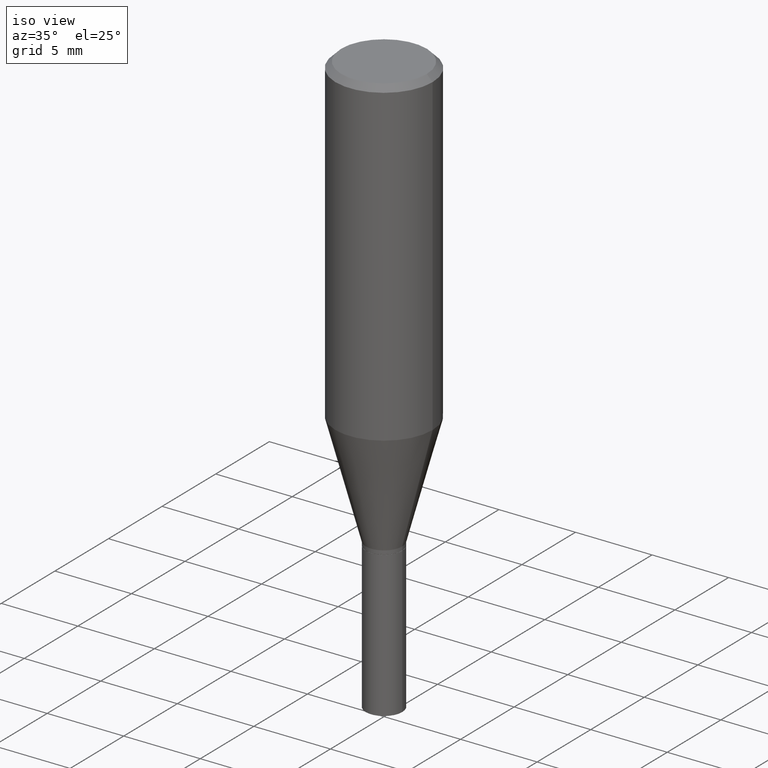
[diagram: clean part render]
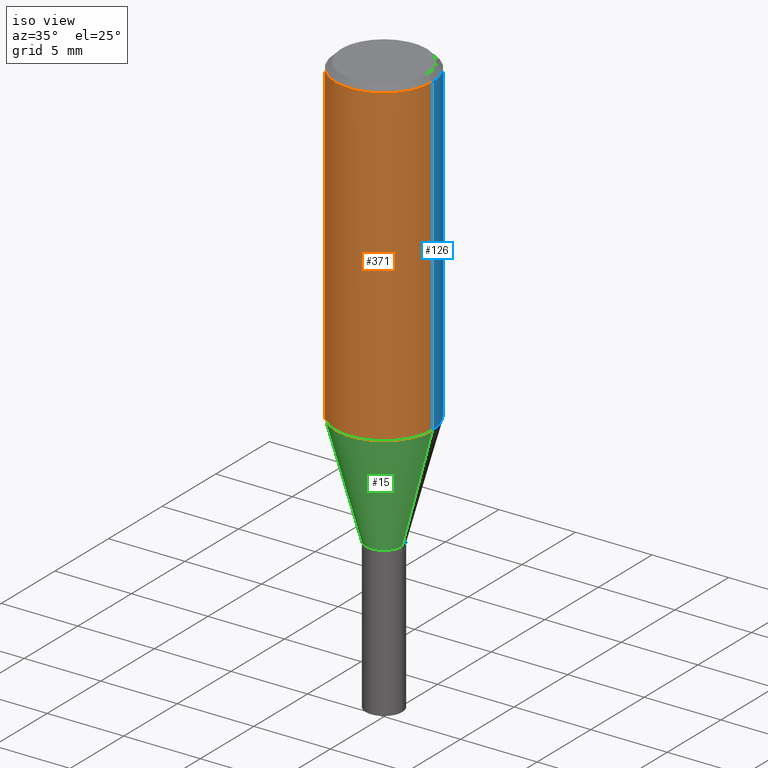
[diagram: same view with three faces highlighted in distinct colors, each labeled with its STEP entity id]
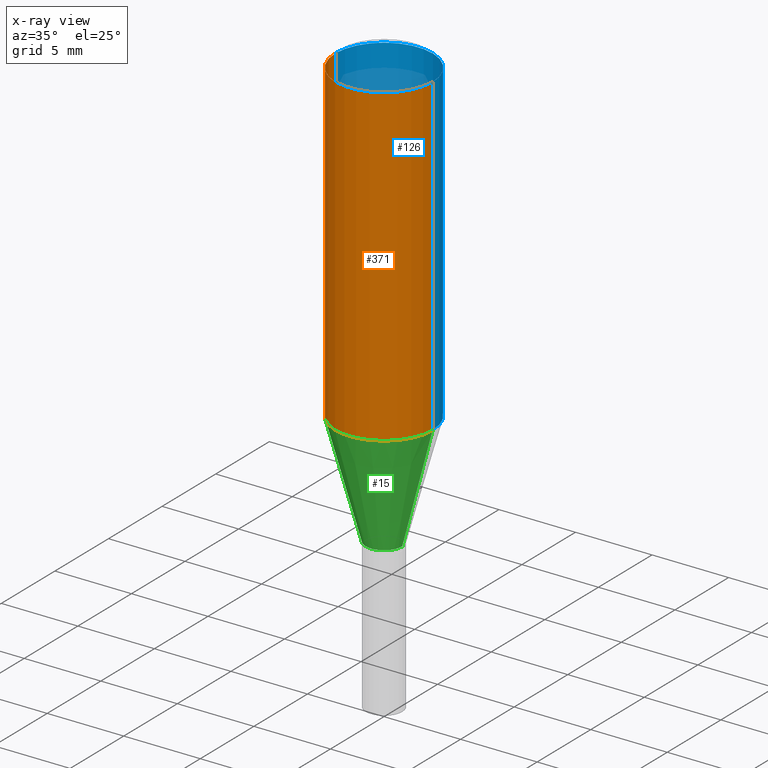
[diagram: x-ray of the same camera — body ghosted, the three highlighted faces saturated]
A machine part, iso view with three faces highlighted in distinct colors.
The next image is the same camera in x-ray (body ghosted, the three faces saturated) — at least one of them is partly hidden behind the body in this view.
Their STEP definitions:

[orange] entity #371 — the highlighted cylindrical surface (partial cylindrical patch) has radius 3.175 mm, axis along (-0, 0, 1).
#4 = CARTESIAN_POINT ( 'NONE',  ( -0.1249999999999999861, -1.987150146016147440E-15, -0.8235268319288721051 ) ) ;
#6 = EDGE_CURVE ( 'NONE', #79, #215, #272, .T. ) ;
#9 = DIRECTION ( 'NONE',  ( 1.000000000000000000, -6.982962677686266711E-15, 0.000000000000000000 ) ) ;
#18 = CARTESIAN_POINT ( 'NONE',  ( 0.1249999999999999861, -3.748198900427056011E-15, -0.8235268319288721051 ) ) ;
#28 = FACE_OUTER_BOUND ( 'NONE', #267, .T. ) ;
#48 = ORIENTED_EDGE ( 'NONE', *, *, #136, .F. ) ;
#61 = CARTESIAN_POINT ( 'NONE',  ( -0.1250000000000000000, 8.881784197001252323E-16, -6.148668862818632227E-30 ) ) ;
#65 = CARTESIAN_POINT ( 'NONE',  ( 0.000000000000000000, 0.000000000000000000, 0.000000000000000000 ) ) ;
#79 = VERTEX_POINT ( 'NONE', #4 ) ;
#87 = LINE ( 'NONE', #295, #311 ) ;
#95 = VERTEX_POINT ( 'NONE', #429 ) ;
#96 = DIRECTION ( 'NONE',  ( -2.445468806185136877E-29, 3.491481338843145188E-15, 1.000000000000000000 ) ) ;
#108 = VERTEX_POINT ( 'NONE', #220 ) ;
#136 = EDGE_CURVE ( 'NONE', #79, #95, #411, .T. ) ;
#141 = DIRECTION ( 'NONE',  ( -2.445468806185136597E-29, 3.491481338843145583E-15, 1.000000000000000000 ) ) ;
#195 = AXIS2_PLACEMENT_3D ( 'NONE', #65, #276, #202 ) ;
#202 = DIRECTION ( 'NONE',  ( 1.000000000000000000, -6.982962677686266711E-15, 4.876176775795935793E-29 ) ) ;
#215 = VERTEX_POINT ( 'NONE', #18 ) ;
#220 = CARTESIAN_POINT ( 'NONE',  ( 0.1250000000000000000, -9.252425547934304180E-16, -0.01499999999999999944 ) ) ;
#224 = DIRECTION ( 'NONE',  ( -2.445468806185136597E-29, 3.491481338843145583E-15, 1.000000000000000000 ) ) ;
#229 = AXIS2_PLACEMENT_3D ( 'NONE', #247, #141, #277 ) ;
#243 = ORIENTED_EDGE ( 'NONE', *, *, #6, .T. ) ;
#244 = EDGE_CURVE ( 'NONE', #215, #108, #87, .T. ) ;
#247 = CARTESIAN_POINT ( 'NONE',  ( 2.013909178538526665E-29, -2.875328565716272672E-15, -0.8235268319288721051 ) ) ;
#254 = CIRCLE ( 'NONE', #329, 0.1250000000000000000 ) ;
#260 = EDGE_CURVE ( 'NONE', #95, #108, #254, .T. ) ;
#267 = EDGE_LOOP ( 'NONE', ( #48, #243, #308, #344 ) ) ;
#272 = CIRCLE ( 'NONE', #229, 0.1250000000000000000 ) ;
#276 = DIRECTION ( 'NONE',  ( -2.445468806185136597E-29, 3.491481338843145583E-15, 1.000000000000000000 ) ) ;
#277 = DIRECTION ( 'NONE',  ( 1.000000000000000000, -6.982962677686266711E-15, 0.000000000000000000 ) ) ;
#295 = CARTESIAN_POINT ( 'NONE',  ( 0.1250000000000000000, -8.728703347107833388E-16, 6.095220969744919741E-30 ) ) ;
#308 = ORIENTED_EDGE ( 'NONE', *, *, #244, .T. ) ;
#311 = VECTOR ( 'NONE', #441, 39.37007874015748143 ) ;
#320 = CARTESIAN_POINT ( 'NONE',  ( 3.668203209277705088E-31, -5.237222008264718399E-17, -0.01499999999999999944 ) ) ;
#329 = AXIS2_PLACEMENT_3D ( 'NONE', #320, #224, #9 ) ;
#344 = ORIENTED_EDGE ( 'NONE', *, *, #260, .F. ) ;
#353 = VECTOR ( 'NONE', #96, 39.37007874015748143 ) ;
#371 = ADVANCED_FACE ( 'NONE', ( #28 ), #379, .T. ) ;
#379 = CYLINDRICAL_SURFACE ( 'NONE', #195, 0.1250000000000000000 ) ;
#411 = LINE ( 'NONE', #61, #353 ) ;
#429 = CARTESIAN_POINT ( 'NONE',  ( -0.1250000000000000000, -5.756719731993345446E-16, -0.01499999999999999944 ) ) ;
#441 = DIRECTION ( 'NONE',  ( -2.445468806185136877E-29, 3.491481338843145188E-15, 1.000000000000000000 ) ) ;

[blue] entity #126 — the highlighted cylindrical surface (partial cylindrical patch) has radius 3.175 mm, axis along (-0, 0, 1).
#2 = CYLINDRICAL_SURFACE ( 'NONE', #359, 0.1250000000000000000 ) ;
#4 = CARTESIAN_POINT ( 'NONE',  ( -0.1249999999999999861, -1.987150146016147440E-15, -0.8235268319288721051 ) ) ;
#5 = CIRCLE ( 'NONE', #179, 0.1250000000000000000 ) ;
#11 = DIRECTION ( 'NONE',  ( 1.000000000000000000, -6.982962677686266711E-15, 0.000000000000000000 ) ) ;
#17 = CARTESIAN_POINT ( 'NONE',  ( 0.000000000000000000, 0.000000000000000000, 0.000000000000000000 ) ) ;
#18 = CARTESIAN_POINT ( 'NONE',  ( 0.1249999999999999861, -3.748198900427056011E-15, -0.8235268319288721051 ) ) ;
#24 = ORIENTED_EDGE ( 'NONE', *, *, #262, .T. ) ;
#52 = DIRECTION ( 'NONE',  ( -2.445468806185136597E-29, 3.491481338843145583E-15, 1.000000000000000000 ) ) ;
#61 = CARTESIAN_POINT ( 'NONE',  ( -0.1250000000000000000, 8.881784197001252323E-16, -6.148668862818632227E-30 ) ) ;
#68 = ORIENTED_EDGE ( 'NONE', *, *, #136, .T. ) ;
#71 = ORIENTED_EDGE ( 'NONE', *, *, #244, .F. ) ;
#79 = VERTEX_POINT ( 'NONE', #4 ) ;
#86 = CARTESIAN_POINT ( 'NONE',  ( 3.668203209277705088E-31, -5.237222008264718399E-17, -0.01499999999999999944 ) ) ;
#87 = LINE ( 'NONE', #295, #311 ) ;
#92 = ORIENTED_EDGE ( 'NONE', *, *, #196, .F. ) ;
#95 = VERTEX_POINT ( 'NONE', #429 ) ;
#96 = DIRECTION ( 'NONE',  ( -2.445468806185136877E-29, 3.491481338843145188E-15, 1.000000000000000000 ) ) ;
#108 = VERTEX_POINT ( 'NONE', #220 ) ;
#125 = CARTESIAN_POINT ( 'NONE',  ( 2.013909178538526665E-29, -2.875328565716272672E-15, -0.8235268319288721051 ) ) ;
#126 = ADVANCED_FACE ( 'NONE', ( #325 ), #2, .T. ) ;
#136 = EDGE_CURVE ( 'NONE', #79, #95, #411, .T. ) ;
#155 = DIRECTION ( 'NONE',  ( -2.445468806185136597E-29, 3.491481338843145583E-15, 1.000000000000000000 ) ) ;
#164 = DIRECTION ( 'NONE',  ( 1.000000000000000000, -6.982962677686266711E-15, 4.876176775795935793E-29 ) ) ;
#179 = AXIS2_PLACEMENT_3D ( 'NONE', #125, #52, #377 ) ;
#196 = EDGE_CURVE ( 'NONE', #108, #95, #203, .T. ) ;
#203 = CIRCLE ( 'NONE', #455, 0.1250000000000000000 ) ;
#215 = VERTEX_POINT ( 'NONE', #18 ) ;
#220 = CARTESIAN_POINT ( 'NONE',  ( 0.1250000000000000000, -9.252425547934304180E-16, -0.01499999999999999944 ) ) ;
#244 = EDGE_CURVE ( 'NONE', #215, #108, #87, .T. ) ;
#262 = EDGE_CURVE ( 'NONE', #215, #79, #5, .T. ) ;
#295 = CARTESIAN_POINT ( 'NONE',  ( 0.1250000000000000000, -8.728703347107833388E-16, 6.095220969744919741E-30 ) ) ;
#311 = VECTOR ( 'NONE', #441, 39.37007874015748143 ) ;
#325 = FACE_OUTER_BOUND ( 'NONE', #332, .T. ) ;
#332 = EDGE_LOOP ( 'NONE', ( #24, #68, #92, #71 ) ) ;
#336 = DIRECTION ( 'NONE',  ( -2.445468806185136597E-29, 3.491481338843145583E-15, 1.000000000000000000 ) ) ;
#353 = VECTOR ( 'NONE', #96, 39.37007874015748143 ) ;
#359 = AXIS2_PLACEMENT_3D ( 'NONE', #17, #155, #164 ) ;
#377 = DIRECTION ( 'NONE',  ( 1.000000000000000000, -6.982962677686266711E-15, 0.000000000000000000 ) ) ;
#411 = LINE ( 'NONE', #61, #353 ) ;
#429 = CARTESIAN_POINT ( 'NONE',  ( -0.1250000000000000000, -5.756719731993345446E-16, -0.01499999999999999944 ) ) ;
#441 = DIRECTION ( 'NONE',  ( -2.445468806185136877E-29, 3.491481338843145188E-15, 1.000000000000000000 ) ) ;
#455 = AXIS2_PLACEMENT_3D ( 'NONE', #86, #336, #11 ) ;

[green] entity #15 — the highlighted conical surface has half-angle 15 deg.
#4 = CARTESIAN_POINT ( 'NONE',  ( -0.1249999999999999861, -1.987150146016147440E-15, -0.8235268319288721051 ) ) ;
#6 = EDGE_CURVE ( 'NONE', #79, #215, #272, .T. ) ;
#14 = VERTEX_POINT ( 'NONE', #205 ) ;
#15 = ADVANCED_FACE ( 'NONE', ( #234 ), #153, .T. ) ;
#18 = CARTESIAN_POINT ( 'NONE',  ( 0.1249999999999999861, -3.748198900427056011E-15, -0.8235268319288721051 ) ) ;
#32 = DIRECTION ( 'NONE',  ( -0.2588190451025215166, 5.211531920934551042E-15, 0.9659258262890679791 ) ) ;
#54 = AXIS2_PLACEMENT_3D ( 'NONE', #152, #341, #259 ) ;
#58 = LINE ( 'NONE', #385, #360 ) ;
#79 = VERTEX_POINT ( 'NONE', #4 ) ;
#100 = CARTESIAN_POINT ( 'NONE',  ( 0.04690000000000005276, -4.220502642393594266E-15, -1.115000000000000213 ) ) ;
#112 = ORIENTED_EDGE ( 'NONE', *, *, #6, .F. ) ;
#141 = DIRECTION ( 'NONE',  ( -2.445468806185136597E-29, 3.491481338843145583E-15, 1.000000000000000000 ) ) ;
#152 = CARTESIAN_POINT ( 'NONE',  ( 2.726697718896427687E-29, -3.893001692810108364E-15, -1.115000000000000213 ) ) ;
#153 = CONICAL_SURFACE ( 'NONE', #178, 0.04690000000000005276, 0.2617993877991502405 ) ;
#172 = ORIENTED_EDGE ( 'NONE', *, *, #406, .F. ) ;
#173 = VERTEX_POINT ( 'NONE', #324 ) ;
#178 = AXIS2_PLACEMENT_3D ( 'NONE', #270, #413, #447 ) ;
#197 = EDGE_LOOP ( 'NONE', ( #172, #442, #281, #112 ) ) ;
#204 = VECTOR ( 'NONE', #240, 39.37007874015748143 ) ;
#205 = CARTESIAN_POINT ( 'NONE',  ( -0.04690000000000005276, -2.773453647877384221E-15, -1.115000000000000213 ) ) ;
#215 = VERTEX_POINT ( 'NONE', #18 ) ;
#229 = AXIS2_PLACEMENT_3D ( 'NONE', #247, #141, #277 ) ;
#234 = FACE_OUTER_BOUND ( 'NONE', #197, .T. ) ;
#240 = DIRECTION ( 'NONE',  ( 0.2588190451025215166, 1.565188264969620784E-15, 0.9659258262890679791 ) ) ;
#247 = CARTESIAN_POINT ( 'NONE',  ( 2.013909178538526665E-29, -2.875328565716272672E-15, -0.8235268319288721051 ) ) ;
#259 = DIRECTION ( 'NONE',  ( 1.000000000000000000, -6.982962677686269077E-15, 0.000000000000000000 ) ) ;
#270 = CARTESIAN_POINT ( 'NONE',  ( 2.726697718896427687E-29, -3.893001692810108364E-15, -1.115000000000000213 ) ) ;
#272 = CIRCLE ( 'NONE', #229, 0.1250000000000000000 ) ;
#277 = DIRECTION ( 'NONE',  ( 1.000000000000000000, -6.982962677686266711E-15, 0.000000000000000000 ) ) ;
#281 = ORIENTED_EDGE ( 'NONE', *, *, #354, .T. ) ;
#289 = CIRCLE ( 'NONE', #54, 0.04690000000000005276 ) ;
#324 = CARTESIAN_POINT ( 'NONE',  ( 0.04690000000000005276, -4.220502642393594266E-15, -1.115000000000000213 ) ) ;
#327 = EDGE_CURVE ( 'NONE', #14, #173, #289, .T. ) ;
#341 = DIRECTION ( 'NONE',  ( -2.445468806185136597E-29, 3.491481338843145583E-15, 1.000000000000000000 ) ) ;
#351 = LINE ( 'NONE', #100, #204 ) ;
#354 = EDGE_CURVE ( 'NONE', #173, #215, #351, .T. ) ;
#360 = VECTOR ( 'NONE', #32, 39.37007874015748143 ) ;
#385 = CARTESIAN_POINT ( 'NONE',  ( -0.04690000000000005276, -3.559757149738621002E-15, -1.115000000000000213 ) ) ;
#406 = EDGE_CURVE ( 'NONE', #14, #79, #58, .T. ) ;
#413 = DIRECTION ( 'NONE',  ( -2.445468806185136597E-29, 3.491481338843145583E-15, 1.000000000000000000 ) ) ;
#442 = ORIENTED_EDGE ( 'NONE', *, *, #327, .T. ) ;
#447 = DIRECTION ( 'NONE',  ( 1.000000000000000000, -6.982962677686269077E-15, 0.000000000000000000 ) ) ;